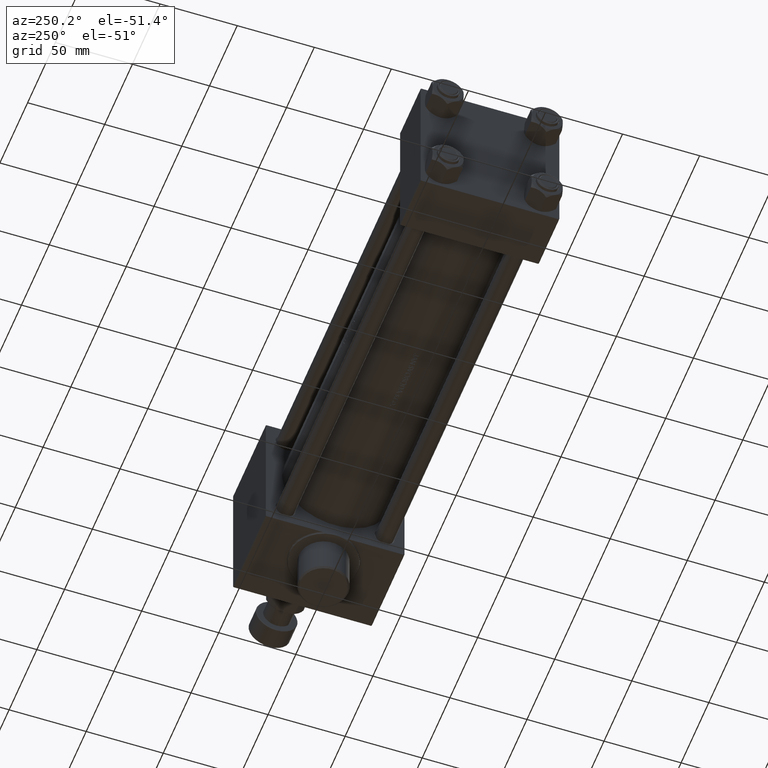
[diagram: clean part render]
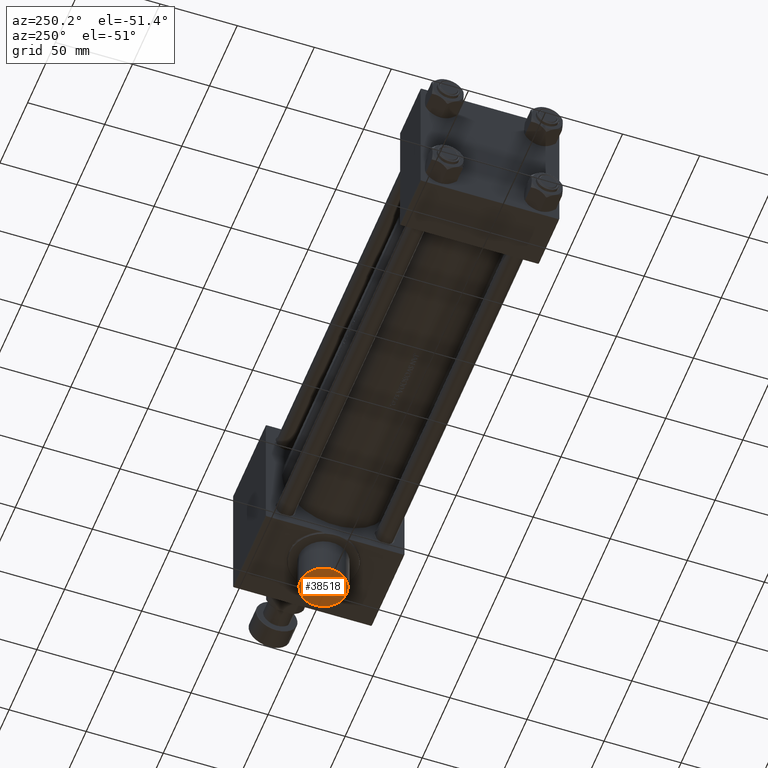
[diagram: same view with one face highlighted and labeled with its STEP entity id]
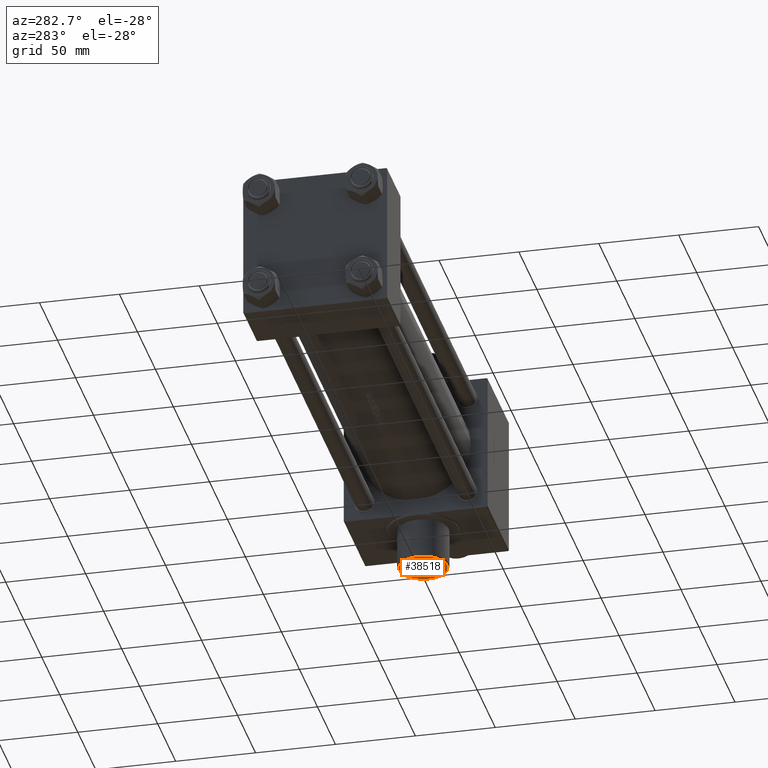
[diagram: same view with one face highlighted and labeled with its STEP entity id]
A machine part, auxiliary view. The second image highlights one B-rep face of the part: STEP entity #38518.
A second angle (auxiliary view) of the same face is appended — the face is thin or edge-on in the first view.
In plain terms, the highlighted planar face has unit normal (0, -0, -1).
Its self-contained STEP definition (entity closure, byte-faithful):
#3408 = DIRECTION ( 'NONE',  ( 0.000000000000000000, 0.000000000000000000, 1.000000000000000000 ) ) ;
#6539 = AXIS2_PLACEMENT_3D ( 'NONE', #28206, #31537, #10111 ) ;
#7650 = VERTEX_POINT ( 'NONE', #12963 ) ;
#7859 = DIRECTION ( 'NONE',  ( 0.000000000000000000, -8.673617379884036705E-17, -1.000000000000000000 ) ) ;
#9211 = EDGE_CURVE ( 'NONE', #16668, #7650, #37689, .T. ) ;
#10111 = DIRECTION ( 'NONE',  ( 0.000000000000000000, 0.000000000000000000, 1.000000000000000000 ) ) ;
#11442 = PLANE ( 'NONE',  #30980 ) ;
#12963 = CARTESIAN_POINT ( 'NONE',  ( 300.0000000000000000, 70.50000000000000000, 14.99999999999984190 ) ) ;
#14723 = EDGE_LOOP ( 'NONE', ( #27789, #19454 ) ) ;
#16668 = VERTEX_POINT ( 'NONE', #23290 ) ;
#19454 = ORIENTED_EDGE ( 'NONE', *, *, #23595, .T. ) ;
#23290 = CARTESIAN_POINT ( 'NONE',  ( 300.0000000000000000, 70.50000000000000000, -14.99999999999984546 ) ) ;
#23595 = EDGE_CURVE ( 'NONE', #7650, #16668, #36504, .T. ) ;
#23605 = AXIS2_PLACEMENT_3D ( 'NONE', #28884, #36023, #3408 ) ;
#25958 = CARTESIAN_POINT ( 'NONE',  ( 300.0000000000000000, 70.50000000000000000, -2.255140518769849223E-15 ) ) ;
#27789 = ORIENTED_EDGE ( 'NONE', *, *, #9211, .T. ) ;
#28206 = CARTESIAN_POINT ( 'NONE',  ( 300.0000000000000000, 70.50000000000000000, -2.255140518769849223E-15 ) ) ;
#28884 = CARTESIAN_POINT ( 'NONE',  ( 300.0000000000000000, 70.50000000000000000, -2.255140518769849223E-15 ) ) ;
#30980 = AXIS2_PLACEMENT_3D ( 'NONE', #25958, #40461, #7859 ) ;
#31537 = DIRECTION ( 'NONE',  ( 0.000000000000000000, 1.000000000000000000, -8.673617379884036705E-17 ) ) ;
#36023 = DIRECTION ( 'NONE',  ( 0.000000000000000000, 1.000000000000000000, -8.673617379884036705E-17 ) ) ;
#36504 = CIRCLE ( 'NONE', #23605, 14.99999999999984368 ) ;
#37689 = CIRCLE ( 'NONE', #6539, 14.99999999999984368 ) ;
#38518 = ADVANCED_FACE ( 'NONE', ( #44033 ), #11442, .T. ) ;
#40461 = DIRECTION ( 'NONE',  ( 0.000000000000000000, 1.000000000000000000, -8.673617379884036705E-17 ) ) ;
#44033 = FACE_OUTER_BOUND ( 'NONE', #14723, .T. ) ;